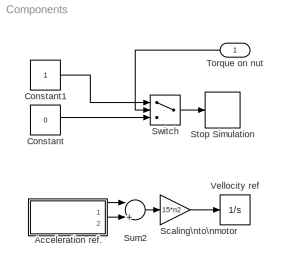
MODEL Components
KIND model
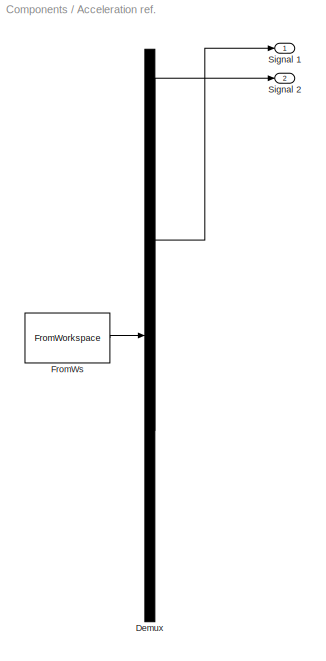
BLOCK [SubSystem] Acceleration ref.
  ClipboardFcn = sigbuilder_block('clipboard');
  CloseFcn = sigbuilder_block('close');
  CopyFcn = sigbuilder_block('copy');
  DeleteFcn = sigbuilder_block('delete');
  FunctionWithSeparateData = off
  LoadFcn = sigbuilder_block('load');
  MaskCapabilities = slmaskedcaps(gcbh)
  MaskDescription = Sigbuilder GUI
  MaskDisplay = plot(0,0,100,100,[10,10,40,40,10],[80,20,20,80,80],[40,10],[50,50], [40,27,10],[65,72,56],[40,25,25,10],[28,28,43,43]);
  MaskHideContents = on
  MaskIconFrame = on
  MaskIconOpaque = off
  MaskIconRotate = port
  MaskIconUnits = autoscale
  MaskInitialization = if ~strcmp(get_param(bdroot(gcbh),'SimulationStatus'),'stopped') tuvar = sigbuilder_block('maskInit'); end
  MaskPortRotate = default
  MaskSelfModifiable = on
  MaskType = Sigbuilder block
  MinAlgLoopOccurrences = off
  ModelCloseFcn = sigbuilder_block('modelClose');
  NameChangeFcn = sigbuilder_block('namechange');
  Opaque = off
  OpenFcn = sigbuilder_block('open',[214.5 141.75 550.5 399.75 ]);
  Ports = [0, 2]
  PreSaveFcn = sigbuilder_block('preSave');
  PropExecContextOutsideSubsystem = off
  RTWSystemCode = Auto
  RequestExecContextInheritance = off
  SID = 34
  StartFcn = sigbuilder_block('start');
  StopFcn = sigbuilder_block('stop');
  Tag = STV Subsys
BLOCK [Demux] Acceleration ref./Demux
  Outputs = 2
  Ports = [1, 2]
  SID = 15
  Tag = STV Demux
BLOCK [FromWorkspace] Acceleration ref./FromWs
  SID = 16
  SampleTime = 0
  SigBuilderData = DataTag0
  Tag = STV FromWs
  VariableName = tuvar
  VnvData = DataTag1
  ZeroCross = on
BLOCK [Outport] Acceleration ref./Signal 1
  IconDisplay = Port number
  OutDataType = fixdt(1, 16)
  OutScaling = 2^0
  SID = 17
  Tag = STV Outport
BLOCK [Outport] Acceleration ref./Signal 2
  IconDisplay = Port number
  Port = 2
  SID = 1
  Tag = STV Outport
BLOCK [Constant] Constant
  OutDataType = fixdt(1, 16)
  OutScaling = 2^0
  SID = 24
  Value = 0
BLOCK [Constant] Constant1
  OutDataType = fixdt(1, 16)
  OutScaling = 2^0
  SID = 33
BLOCK [Gain] Scaling\nto\nmotor
  Gain = 15*n2
  OutDataType = fixdt(1, 16)
  OutDataTypeMode = Inherit via internal rule
  OutDataTypeStr = Inherit: Inherit via internal rule
  OutScaling = 2^0
  ParamDataTypeStr = Inherit: Inherit via internal rule
  ParameterDataType = fixdt(1, 16)
  ParameterDataTypeMode = Inherit via internal rule
  ParameterScaling = 2^0
  SID = 38
  SaturateOnIntegerOverflow = off
BLOCK [Stop] Stop Simulation
  SID = 32
BLOCK [Sum] Sum2
  InputSameDT = off
  Inputs = |++
  OutDataType = fixdt(1, 16)
  OutDataTypeMode = Inherit via internal rule
  OutDataTypeStr = Inherit: Inherit via internal rule
  OutScaling = 2^0
  Ports = [2, 1]
  SID = 35
  SaturateOnIntegerOverflow = off
BLOCK [Switch] Switch
  InputSameDT = off
  OutDataType = fixdt(1, 16)
  OutScaling = 2^0
  SID = 23
  SaturateOnIntegerOverflow = off
  Threshold = T
BLOCK [Inport] Torque on nut
  IconDisplay = Port number
  OutDataType = fixdt(1, 16)
  OutScaling = 2^0
  SID = 42
BLOCK [Integrator] Vellocity ref
  Ports = [1, 1]
  SID = 36
LINE Acceleration ref./Demux:1 -> Acceleration ref./Signal 1:1
LINE Acceleration ref./Demux:2 -> Acceleration ref./Signal 2:1
LINE Acceleration ref./FromWs:1 -> Acceleration ref./Demux:1
LINE Acceleration ref.:1 -> Sum2:1
LINE Acceleration ref.:2 -> Sum2:2
LINE Constant1:1 -> Switch:1
LINE Constant:1 -> Switch:3
LINE Scaling\nto\nmotor:1 -> Vellocity ref:1
LINE Sum2:1 -> Scaling\nto\nmotor:1
LINE Switch:1 -> Stop Simulation:1
LINE Torque on nut:1 -> Switch:2
